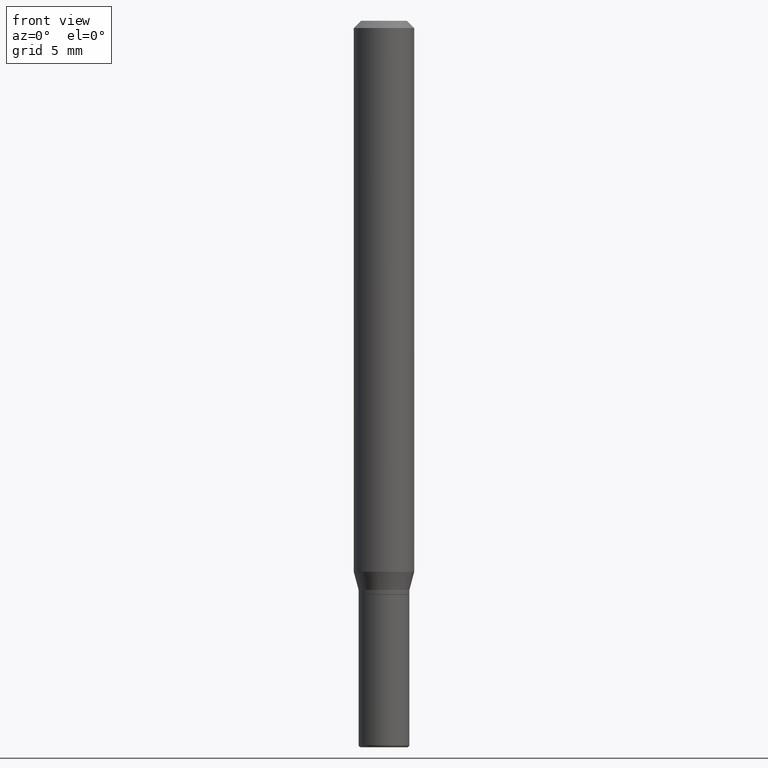
[diagram: clean part render]
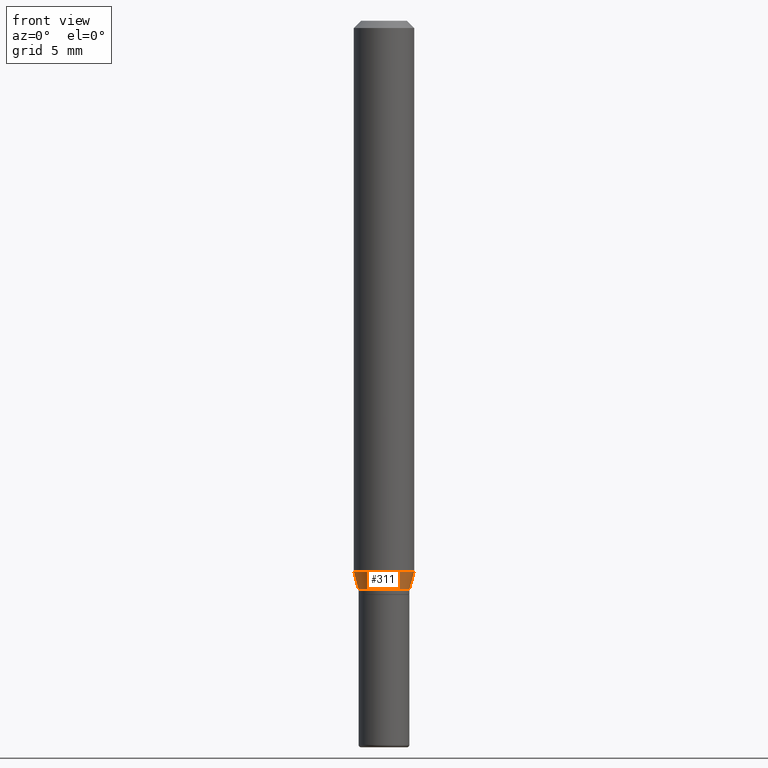
[diagram: same view with one face highlighted and labeled with its STEP entity id]
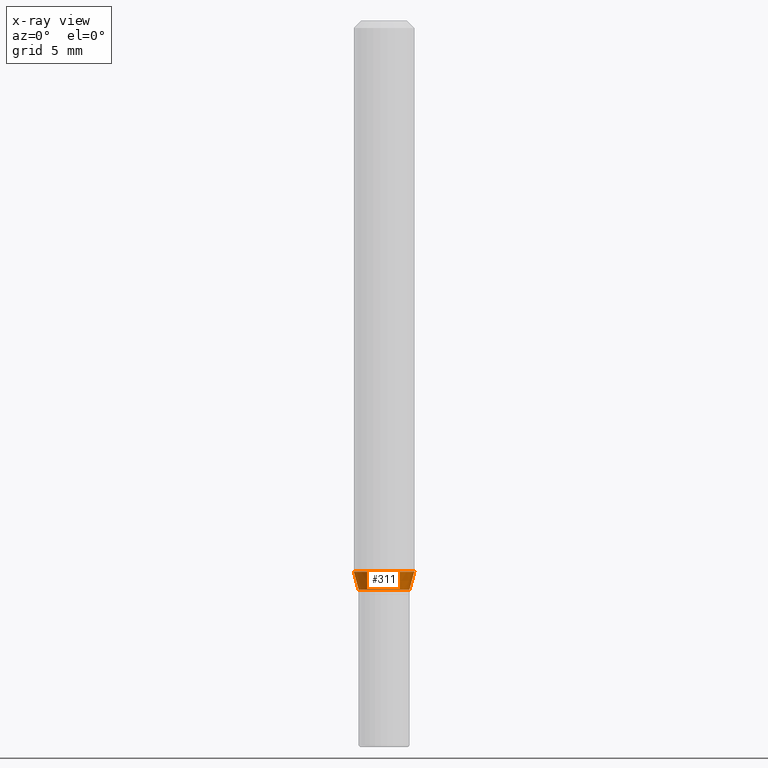
[diagram: x-ray of the same camera — body ghosted, the highlighted face saturated]
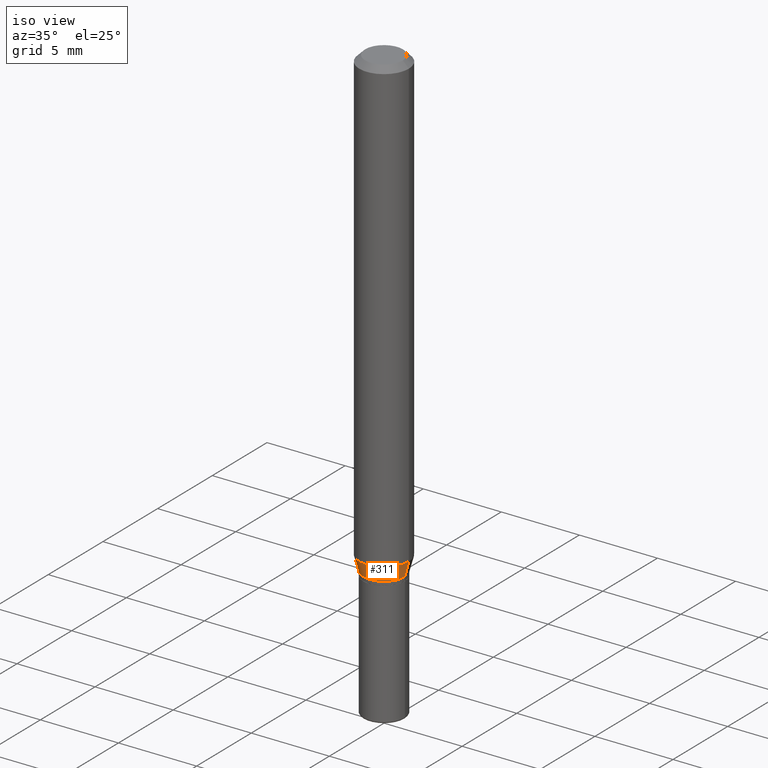
[diagram: same view with one face highlighted and labeled with its STEP entity id]
A machine part, front view. The second image highlights one B-rep face of the part: STEP entity #311.
The next image is the same camera in x-ray: the body ghosted, the highlighted face saturated — about 0% of this face is hidden behind the body in this view.
A second angle (iso view) of the same face is appended — the face is thin or edge-on in the first view.
In plain terms, the highlighted conical surface has half-angle 15 deg.
Its self-contained STEP definition (entity closure, byte-faithful):
#7 = DIRECTION ( 'NONE',  ( -2.445468806185136597E-29, 3.491481338843145583E-15, 1.000000000000000000 ) ) ;
#21 = CIRCLE ( 'NONE', #233, 0.06250000000000000000 ) ;
#31 = DIRECTION ( 'NONE',  ( 1.000000000000000000, -6.982962677686258033E-15, 0.000000000000000000 ) ) ;
#39 = CARTESIAN_POINT ( 'NONE',  ( 2.873425847267536398E-29, -4.102490573140697470E-15, -1.175000000000000488 ) ) ;
#62 = CARTESIAN_POINT ( 'NONE',  ( 0.05250000000000007438, -4.469096113719226630E-15, -1.175000000000000488 ) ) ;
#92 = CARTESIAN_POINT ( 'NONE',  ( 2.873425847267536398E-29, -4.102490573140697470E-15, -1.175000000000000488 ) ) ;
#108 = LINE ( 'NONE', #428, #166 ) ;
#114 = CARTESIAN_POINT ( 'NONE',  ( -0.06250000000000000000, -3.528097505788223835E-15, -1.137679491924311836 ) ) ;
#130 = EDGE_CURVE ( 'NONE', #155, #496, #457, .T. ) ;
#135 = CONICAL_SURFACE ( 'NONE', #489, 0.05250000000000007438, 0.2617993877991492413 ) ;
#154 = EDGE_CURVE ( 'NONE', #339, #496, #21, .T. ) ;
#155 = VERTEX_POINT ( 'NONE', #62 ) ;
#156 = DIRECTION ( 'NONE',  ( 0.2588190451025205729, 1.565188264969628081E-15, 0.9659258262890684232 ) ) ;
#166 = VECTOR ( 'NONE', #478, 39.37007874015748143 ) ;
#198 = DIRECTION ( 'NONE',  ( 1.000000000000000000, -6.982962677686270655E-15, 0.000000000000000000 ) ) ;
#199 = ORIENTED_EDGE ( 'NONE', *, *, #324, .T. ) ;
#202 = VECTOR ( 'NONE', #156, 39.37007874015748143 ) ;
#210 = VERTEX_POINT ( 'NONE', #280 ) ;
#211 = EDGE_CURVE ( 'NONE', #210, #339, #108, .T. ) ;
#233 = AXIS2_PLACEMENT_3D ( 'NONE', #236, #322, #198 ) ;
#234 = CIRCLE ( 'NONE', #468, 0.05250000000000007438 ) ;
#236 = CARTESIAN_POINT ( 'NONE',  ( 2.782159708937459794E-29, -3.972186715638285663E-15, -1.137679491924311836 ) ) ;
#242 = FACE_OUTER_BOUND ( 'NONE', #257, .T. ) ;
#253 = DIRECTION ( 'NONE',  ( -2.445468806185136597E-29, 3.491481338843145583E-15, 1.000000000000000000 ) ) ;
#257 = EDGE_LOOP ( 'NONE', ( #294, #199, #412, #384 ) ) ;
#280 = CARTESIAN_POINT ( 'NONE',  ( -0.05250000000000007438, -3.628776571327434780E-15, -1.175000000000000488 ) ) ;
#285 = DIRECTION ( 'NONE',  ( 1.000000000000000000, -6.982962677686258033E-15, 0.000000000000000000 ) ) ;
#294 = ORIENTED_EDGE ( 'NONE', *, *, #211, .F. ) ;
#311 = ADVANCED_FACE ( 'NONE', ( #242 ), #135, .T. ) ;
#322 = DIRECTION ( 'NONE',  ( -2.445468806185136597E-29, 3.491481338843145583E-15, 1.000000000000000000 ) ) ;
#324 = EDGE_CURVE ( 'NONE', #210, #155, #234, .T. ) ;
#339 = VERTEX_POINT ( 'NONE', #114 ) ;
#384 = ORIENTED_EDGE ( 'NONE', *, *, #154, .F. ) ;
#412 = ORIENTED_EDGE ( 'NONE', *, *, #130, .T. ) ;
#418 = CARTESIAN_POINT ( 'NONE',  ( 0.05250000000000007438, -4.469096113719226630E-15, -1.175000000000000488 ) ) ;
#428 = CARTESIAN_POINT ( 'NONE',  ( -0.05250000000000007438, -3.729455636866644935E-15, -1.175000000000000488 ) ) ;
#457 = LINE ( 'NONE', #418, #202 ) ;
#468 = AXIS2_PLACEMENT_3D ( 'NONE', #92, #253, #31 ) ;
#478 = DIRECTION ( 'NONE',  ( -0.2588190451025205729, 5.211531920934545520E-15, 0.9659258262890684232 ) ) ;
#489 = AXIS2_PLACEMENT_3D ( 'NONE', #39, #7, #285 ) ;
#495 = CARTESIAN_POINT ( 'NONE',  ( 0.06250000000000000000, -4.408621882993678121E-15, -1.137679491924311836 ) ) ;
#496 = VERTEX_POINT ( 'NONE', #495 ) ;